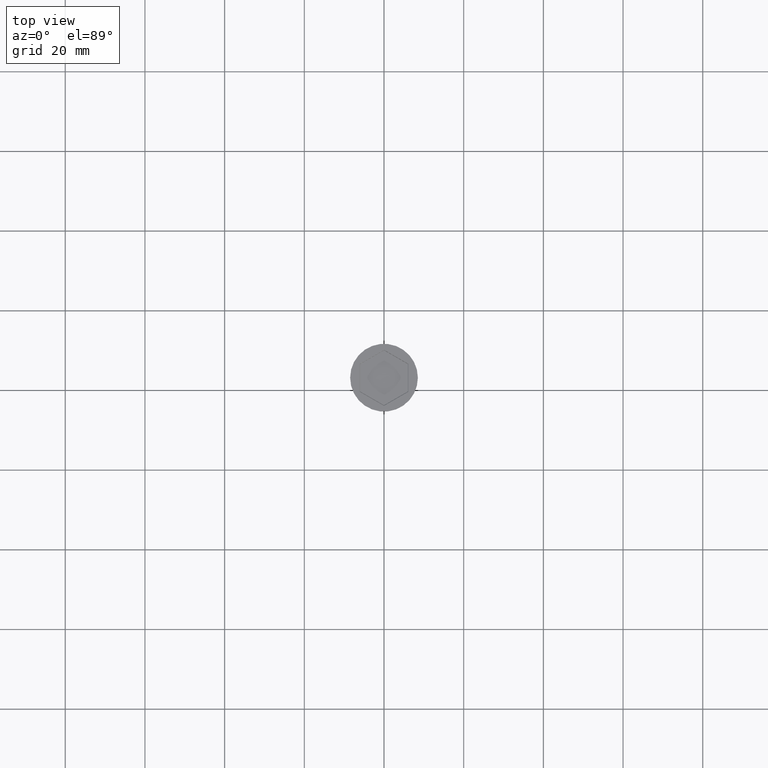
[diagram: clean part render]
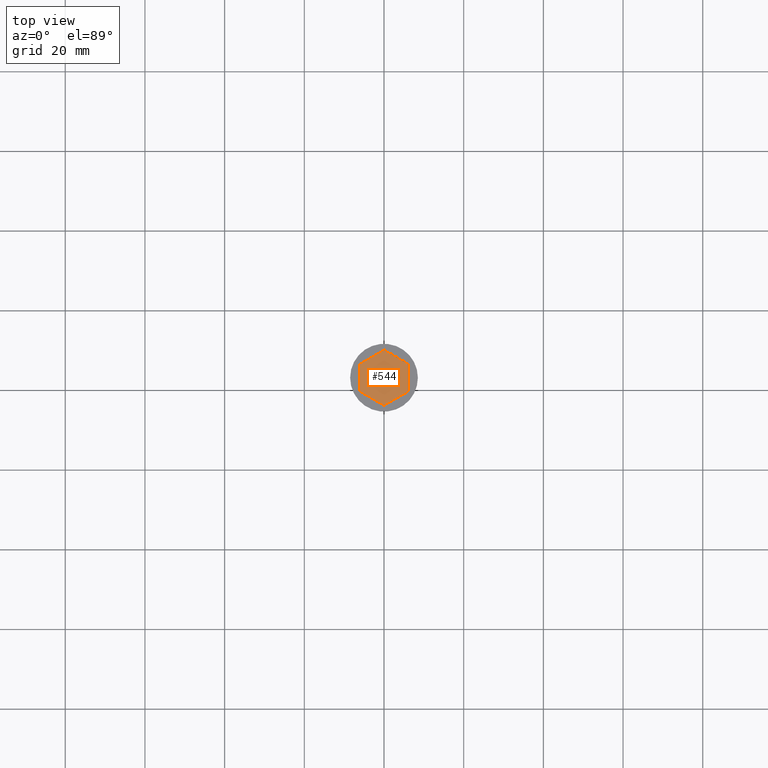
[diagram: same view with one face highlighted and labeled with its STEP entity id]
A machine part, top view. The second image highlights one B-rep face of the part: STEP entity #544.
In plain terms, the highlighted planar face has unit normal (-0, 0, 1).
Its self-contained STEP definition (entity closure, byte-faithful):
#64 = VERTEX_POINT ( 'NONE', #732 ) ;
#69 = LINE ( 'NONE', #328, #675 ) ;
#104 = VECTOR ( 'NONE', #1148, 1000.000000000000000 ) ;
#105 = CARTESIAN_POINT ( 'NONE',  ( -3.000000000000000888, -5.196152422706632024, -2.000000000000000000 ) ) ;
#135 = ORIENTED_EDGE ( 'NONE', *, *, #871, .T. ) ;
#162 = CARTESIAN_POINT ( 'NONE',  ( -3.000000000000000000, 5.196152422706630247, -2.000000000000000000 ) ) ;
#183 = VERTEX_POINT ( 'NONE', #635 ) ;
#228 = ORIENTED_EDGE ( 'NONE', *, *, #436, .T. ) ;
#312 = DIRECTION ( 'NONE',  ( -0.8660254037844387076, 0.4999999999999998890, 0.000000000000000000 ) ) ;
#328 = CARTESIAN_POINT ( 'NONE',  ( 3.000000000000001776, -5.196152422706633800, -2.000000000000000000 ) ) ;
#329 = EDGE_CURVE ( 'NONE', #1219, #943, #1032, .T. ) ;
#436 = EDGE_CURVE ( 'NONE', #183, #1219, #472, .T. ) ;
#447 = CARTESIAN_POINT ( 'NONE',  ( 2.999999999999998668, 5.196152422706632024, -2.000000000000000000 ) ) ;
#459 = DIRECTION ( 'NONE',  ( 1.000000000000000000, 0.000000000000000000, 0.000000000000000000 ) ) ;
#461 = VECTOR ( 'NONE', #312, 1000.000000000000114 ) ;
#472 = LINE ( 'NONE', #829, #1205 ) ;
#479 = PLANE ( 'NONE',  #566 ) ;
#534 = EDGE_CURVE ( 'NONE', #1363, #64, #1326, .T. ) ;
#544 = ADVANCED_FACE ( 'NONE', ( #973 ), #479, .T. ) ;
#550 = ORIENTED_EDGE ( 'NONE', *, *, #1562, .T. ) ;
#566 = AXIS2_PLACEMENT_3D ( 'NONE', #852, #1334, #459 ) ;
#606 = LINE ( 'NONE', #625, #1595 ) ;
#611 = DIRECTION ( 'NONE',  ( 1.251928832280966188E-16, -1.000000000000000000, 0.000000000000000000 ) ) ;
#625 = CARTESIAN_POINT ( 'NONE',  ( -6.000000000000000000, -7.511572993685799101E-16, -2.000000000000000000 ) ) ;
#635 = CARTESIAN_POINT ( 'NONE',  ( 6.000000000000000000, -3.464101615137756607, -2.000000000000000000 ) ) ;
#652 = ORIENTED_EDGE ( 'NONE', *, *, #534, .T. ) ;
#675 = VECTOR ( 'NONE', #937, 1000.000000000000000 ) ;
#732 = CARTESIAN_POINT ( 'NONE',  ( 1.734723475976807094E-15, -6.928203230275511437, -2.000000000000000000 ) ) ;
#753 = CARTESIAN_POINT ( 'NONE',  ( 0.000000000000000000, 6.928203230275507885, -2.000000000000000000 ) ) ;
#782 = EDGE_LOOP ( 'NONE', ( #1399, #1534, #135, #652, #550, #228 ) ) ;
#829 = CARTESIAN_POINT ( 'NONE',  ( 6.000000000000000000, 0.000000000000000000, -2.000000000000000000 ) ) ;
#840 = CARTESIAN_POINT ( 'NONE',  ( -6.000000000000000000, 3.464101615137752166, -2.000000000000000000 ) ) ;
#852 = CARTESIAN_POINT ( 'NONE',  ( 0.000000000000000000, 0.000000000000000000, -2.000000000000000000 ) ) ;
#871 = EDGE_CURVE ( 'NONE', #1370, #1363, #606, .T. ) ;
#937 = DIRECTION ( 'NONE',  ( 0.8660254037844385966, 0.5000000000000001110, 0.000000000000000000 ) ) ;
#943 = VERTEX_POINT ( 'NONE', #753 ) ;
#973 = FACE_OUTER_BOUND ( 'NONE', #782, .T. ) ;
#1032 = LINE ( 'NONE', #447, #461 ) ;
#1073 = CARTESIAN_POINT ( 'NONE',  ( 6.000000000000000000, 3.464101615137754830, -2.000000000000000000 ) ) ;
#1084 = DIRECTION ( 'NONE',  ( 0.000000000000000000, 1.000000000000000000, -0.000000000000000000 ) ) ;
#1148 = DIRECTION ( 'NONE',  ( -0.8660254037844385966, -0.5000000000000001110, 0.000000000000000000 ) ) ;
#1182 = VECTOR ( 'NONE', #1301, 1000.000000000000000 ) ;
#1205 = VECTOR ( 'NONE', #1084, 1000.000000000000000 ) ;
#1219 = VERTEX_POINT ( 'NONE', #1073 ) ;
#1263 = LINE ( 'NONE', #162, #104 ) ;
#1301 = DIRECTION ( 'NONE',  ( 0.8660254037844385966, -0.5000000000000001110, 0.000000000000000000 ) ) ;
#1326 = LINE ( 'NONE', #105, #1182 ) ;
#1334 = DIRECTION ( 'NONE',  ( -0.000000000000000000, 0.000000000000000000, 1.000000000000000000 ) ) ;
#1363 = VERTEX_POINT ( 'NONE', #1478 ) ;
#1370 = VERTEX_POINT ( 'NONE', #840 ) ;
#1399 = ORIENTED_EDGE ( 'NONE', *, *, #329, .T. ) ;
#1478 = CARTESIAN_POINT ( 'NONE',  ( -6.000000000000000000, -3.464101615137754830, -2.000000000000000000 ) ) ;
#1485 = EDGE_CURVE ( 'NONE', #943, #1370, #1263, .T. ) ;
#1534 = ORIENTED_EDGE ( 'NONE', *, *, #1485, .T. ) ;
#1562 = EDGE_CURVE ( 'NONE', #64, #183, #69, .T. ) ;
#1595 = VECTOR ( 'NONE', #611, 1000.000000000000000 ) ;